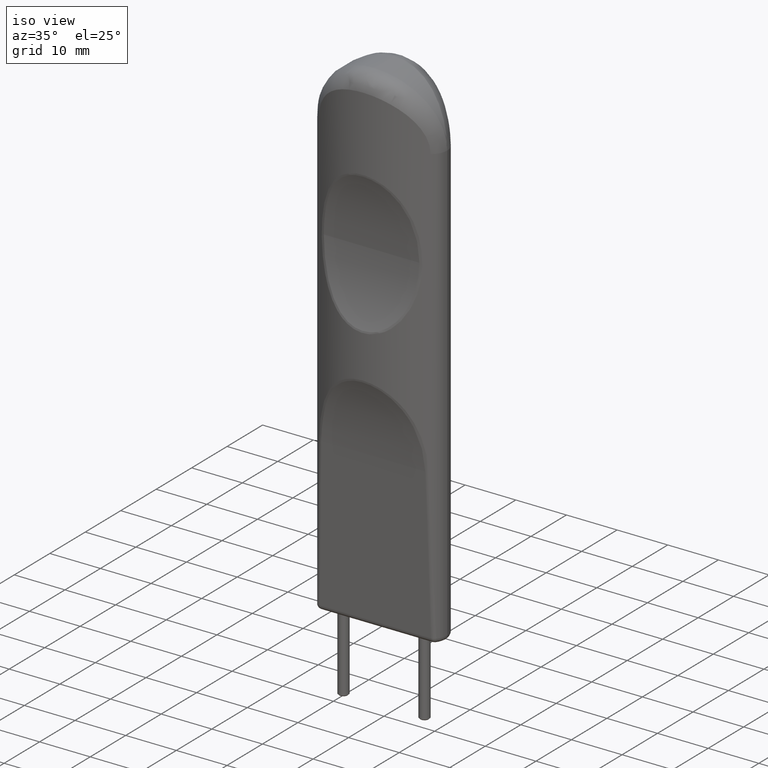
[diagram: clean part render]
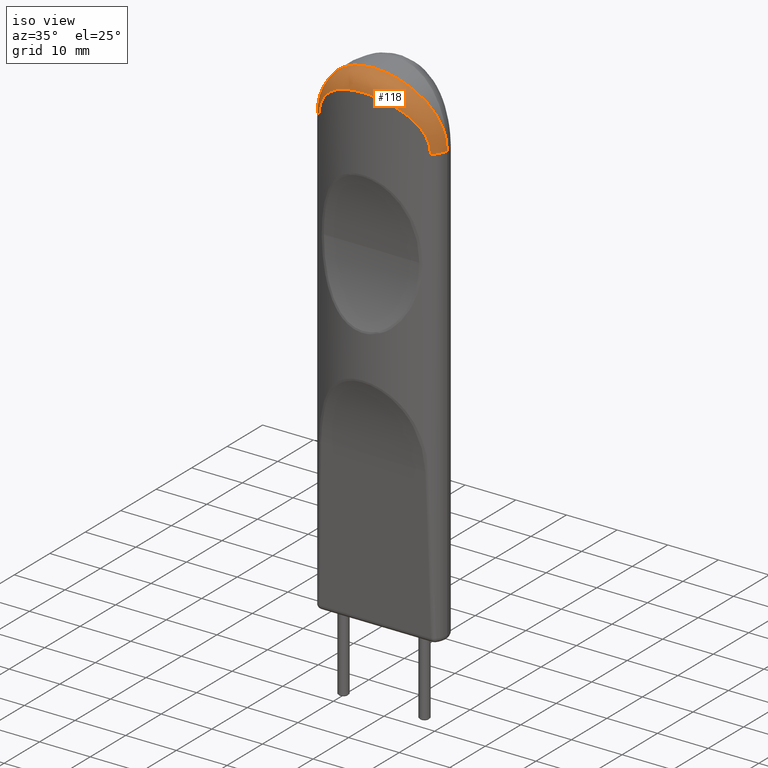
[diagram: same view with one face highlighted and labeled with its STEP entity id]
A machine part, iso view. The second image highlights one B-rep face of the part: STEP entity #118.
In plain terms, the highlighted face is a freeform B-spline surface patch.
Its self-contained STEP definition (entity closure, byte-faithful):
#118=ADVANCED_FACE('NONE',(#266),#267,.T.);
#266=FACE_OUTER_BOUND('',#911,.T.);
#267=(B_SPLINE_SURFACE(3,2,((#913,#914,#915),(#916,#917,#918),(#919,#920,#921),(#922,#923,#924),(#925,#926,#927),(#928,#929,#930),(#931,#932,#933),(#934,#935,#936),(#937,#938,#939),(#940,#941,#942),(#943,#944,#945),(#946,#947,#948),(#949,#950,#951),(#952,#953,#954),(#955,#956,#957),(#958,#959,#960),(#961,#962,#963),(#964,#965,#966),(#967,#968,#969),(#970,#971,#972),(#973,#974,#975),(#976,#977,#978),(#979,#980,#981),(#982,#983,#984),(#985,#986,#987),(#988,#989,#990),(#991,#992,#993),(#994,#995,#996),(#997,#998,#999),(#1000,#1001,#1002),(#1003,#1004,#1005),(#1006,#1007,#1008),(#1009,#1010,#1011),(#1012,#1013,#1014),(#1015,#1016,#1017),(#1018,#1019,#1020),(#1021,#1022,#1023),(#1024,#1025,#1026),(#1027,#1028,#1029),(#1030,#1031,#1032),(#1033,#1034,#1035),(#1036,#1037,#1038),(#1039,#1040,#1041),(#1042,#1043,#1044),(#1045,#1046,#1047),(#1048,#1049,#1050),(#1051,#1052,#1053),(#1054,#1055,#1056),(#1057,#1058,#1059),(#1060,#1061,#1062)),.UNSPECIFIED.,.F.,.F.,.F.)B_SPLINE_SURFACE_WITH_KNOTS((4,2,2,2,2,2,2,2,2,2,2,2,2,2,2,2,2,2,2,2,2,2,2,2,4),(3,3),(0.0,0.00185581353227993,0.0027837202984199,0.00371162706455987,0.0055674405968398,0.00742325412911973,0.0083511608952597,0.00927906766139967,0.0111348811936796,0.0120627879598196,0.0129906947259595,0.0148465082582395,0.0157744150243794,0.0167023217905194,0.0176302285566594,0.0185581353227993,0.0204139488550793,0.0213418556212192,0.0222697623873592,0.0231976691534992,0.0241255759196391,0.0259813894519191,0.026909296218059,0.027837202984199,0.0296930165164789),(0.0,1.0),.UNSPECIFIED.)RATIONAL_B_SPLINE_SURFACE(((1.0,0.881354477089505,1.0),(1.0,0.881350704842463,1.0),(1.0,0.879210961076711,1.0),(1.0,0.873111829568949,1.0),(1.0,0.870596192241215,1.0),(1.0,0.864636514222427,1.0),(1.0,0.861232134745143,1.0),(1.0,0.8499715736576,1.0),(1.0,0.841043785469822,1.0),(1.0,0.82108445504702,1.0),(1.0,0.810274152130972,1.0),(1.0,0.793692625480893,1.0),(1.0,0.788097253600619,1.0),(1.0,0.776910120393579,1.0),(1.0,0.771299581266794,1.0),(1.0,0.755057765443397,1.0),(1.0,0.744904365497337,1.0),(1.0,0.731727931150049,1.0),(1.0,0.727680122794906,1.0),(1.0,0.720479977009014,1.0),(1.0,0.717373261118113,1.0),(1.0,0.709842852193456,1.0),(1.0,0.70715177963089,1.0),(1.0,0.707085124523996,1.0),(1.0,0.707736348010405,1.0),(1.0,0.71031336503987,1.0),(1.0,0.71223237154337,1.0),(1.0,0.717208710696845,1.0),(1.0,0.72026596900322,1.0),(1.0,0.727388720255791,1.0),(1.0,0.731474240029771,1.0),(1.0,0.744725050866854,1.0),(1.0,0.754930593230877,1.0),(1.0,0.771213155948768,1.0),(1.0,0.776825137060823,1.0),(1.0,0.788013807653101,1.0),(1.0,0.793611776311477,1.0),(1.0,0.804674534809966,1.0),(1.0,0.810139712143007,1.0),(1.0,0.82081081476481,1.0),(1.0,0.82603700838565,1.0),(1.0,0.841000951242173,1.0),(1.0,0.849902344181361,1.0),(1.0,0.861119366720025,1.0),(1.0,0.864502309306336,1.0),(1.0,0.87045282875738,1.0),(1.0,0.873025812735064,1.0),(1.0,0.879205377223568,1.0),(1.0,0.881351061532082,1.0),(1.0,0.881354477089505,1.0)))BOUNDED_SURFACE()REPRESENTATION_ITEM('')GEOMETRIC_REPRESENTATION_ITEM()SURFACE());
#911=EDGE_LOOP('',(#2170,#2171,#2172,#2173,#2174));
#913=CARTESIAN_POINT('',(12.5,-4.31644065906311E-015,-12.5));
#914=CARTESIAN_POINT('',(12.5,-1.71538005574048,-12.5));
#915=CARTESIAN_POINT('',(11.0714285714286,-2.66496544373967,-12.5));
#916=CARTESIAN_POINT('',(12.5,-1.06070415647209E-009,-11.6547701359441));
#917=CARTESIAN_POINT('',(12.4999999982459,-1.71538005713984,-11.7318884724111));
#918=CARTESIAN_POINT('',(11.0714285695283,-2.66496544500277,-11.8711489811357));
#919=CARTESIAN_POINT('',(12.4151995764905,-0.0424844794774594,-10.8281563662102));
#920=CARTESIAN_POINT('',(12.4302795858096,-1.77175492873592,-10.9771605651081));
#921=CARTESIAN_POINT('',(10.9963196245077,-2.71554220449845,-11.2561483364682));
#922=CARTESIAN_POINT('',(12.1692509058883,-0.160671831186039,-9.61384463264355));
#923=CARTESIAN_POINT('',(12.2282397263254,-1.92873670906678,-9.86755203782174));
#924=CARTESIAN_POINT('',(10.7784793739787,-2.8562414335088,-10.3527004066829));
#925=CARTESIAN_POINT('',(12.0673080935623,-0.209128735203829,-9.21335388186159));
#926=CARTESIAN_POINT('',(12.1438914017042,-1.99359221154072,-9.49891680751394));
#927=CARTESIAN_POINT('',(10.6881871685345,-2.9139282233673,-10.0547352880568));
#928=CARTESIAN_POINT('',(11.8229447087229,-0.322459750503214,-8.42079103926907));
#929=CARTESIAN_POINT('',(11.9408800821344,-2.14604370507042,-8.76586950761681));
#930=CARTESIAN_POINT('',(10.4717510277752,-3.04884609947752,-9.46506853326438));
#931=CARTESIAN_POINT('',(11.6821311168874,-0.386564613740493,-8.03418233428872));
#932=CARTESIAN_POINT('',(11.8231278397492,-2.23290365436808,-8.40584056115698));
#933=CARTESIAN_POINT('',(10.3470304173021,-3.12516141207994,-9.1774316568082));
#934=CARTESIAN_POINT('',(11.2091556384817,-0.595407860839066,-6.90824810149791));
#935=CARTESIAN_POINT('',(11.4234126019701,-2.51921137438745,-7.34531849404839));
#936=CARTESIAN_POINT('',(9.92810928082301,-3.37378432648773,-8.33973658731966));
#937=CARTESIAN_POINT('',(10.8260093833539,-0.757053513655161,-6.19904126624005));
#938=CARTESIAN_POINT('',(11.0951633972035,-2.74422821262967,-6.66760404331657));
#939=CARTESIAN_POINT('',(9.58875116785304,-3.56621962562795,-7.81208670192746));
#940=CARTESIAN_POINT('',(9.92344069770985,-1.10441481350763,-4.85605567445389));
#941=CARTESIAN_POINT('',(10.307150508985,-3.23839294064196,-5.35727304509125));
#942=CARTESIAN_POINT('',(8.78933318966057,-3.97974498466422,-6.81290542194883));
#943=CARTESIAN_POINT('',(9.41383612047189,-1.2861418177226,-4.23764700089146));
#944=CARTESIAN_POINT('',(9.85132832154441,-3.50389871335829,-4.73809721061738));
#945=CARTESIAN_POINT('',(8.33796913495299,-4.19608665435325,-6.35280936858977));
#946=CARTESIAN_POINT('',(8.56854005459937,-1.55407138276584,-3.39015267806474));
#947=CARTESIAN_POINT('',(9.07886637849381,-3.90466560049013,-3.87025024319363));
#948=CARTESIAN_POINT('',(7.58927833423479,-4.51505042370327,-5.7222735925169));
#949=CARTESIAN_POINT('',(8.27284715955659,-1.64276868278481,-3.12065837077198));
#950=CARTESIAN_POINT('',(8.8026627442849,-4.04043602913307,-3.58793573150402));
#951=CARTESIAN_POINT('',(7.32737891273128,-4.62064244651644,-5.5217698276673));
#952=CARTESIAN_POINT('',(7.65222073565874,-1.81676968194947,-2.60780270435796));
#953=CARTESIAN_POINT('',(8.21326965687462,-4.31143064062291,-3.04153876419905));
#954=CARTESIAN_POINT('',(6.77768122303087,-4.82778649421798,-5.14020521222937));
#955=CARTESIAN_POINT('',(7.32597117364637,-1.90233994576625,-2.36376424112086));
#956=CARTESIAN_POINT('',(7.8982872704888,-4.44706725533905,-2.77699213546968));
#957=CARTESIAN_POINT('',(6.48871732504675,-4.92965585501693,-4.95864059548028));
#958=CARTESIAN_POINT('',(6.32152689740846,-2.14566844227276,-1.68608240867111));
#959=CARTESIAN_POINT('',(6.90385699079052,-4.84274414379034,-2.02361362999075));
#960=CARTESIAN_POINT('',(5.59906668092757,-5.21933263761996,-4.4544453118786));
#961=CARTESIAN_POINT('',(5.61268327555682,-2.29173194844491,-1.3012511414315));
#962=CARTESIAN_POINT('',(6.18366855982891,-5.08725406425707,-1.58327923119778));
#963=CARTESIAN_POINT('',(4.97123375839535,-5.39321776242645,-4.16813084874483));
#964=CARTESIAN_POINT('',(4.48647446674052,-2.47647456206023,-0.825772220547669));
#965=CARTESIAN_POINT('',(5.00330486679086,-5.40581572894936,-1.0231255759047));
#966=CARTESIAN_POINT('',(3.97373452766195,-5.61314944663755,-3.81437453232757));
#967=CARTESIAN_POINT('',(4.10051030996041,-2.53232599362809,-0.684378236175428));
#968=CARTESIAN_POINT('',(4.58994430696019,-5.50431565801789,-0.852763515560932));
#969=CARTESIAN_POINT('',(3.63188056032861,-5.67963924515762,-3.7091774072693));
#970=CARTESIAN_POINT('',(3.30575187608477,-2.6306276603913,-0.437864741198659));
#971=CARTESIAN_POINT('',(3.72511433293295,-5.68034856474748,-0.551198950722831));
#972=CARTESIAN_POINT('',(2.92795166159713,-5.79666503996383,-3.525771367897));
#973=CARTESIAN_POINT('',(2.90119889070772,-2.67246242063303,-0.334282214862692));
#974=CARTESIAN_POINT('',(3.27903269918541,-5.75632824468209,-0.422681188548715));
#975=CARTESIAN_POINT('',(2.56963330316672,-5.84646832533763,-3.44870596793834));
#976=CARTESIAN_POINT('',(1.68331492420184,-2.77320714388822,-0.086175940099728));
#977=CARTESIAN_POINT('',(1.91464316860513,-5.94206398892823,-0.110205493307569));
#978=CARTESIAN_POINT('',(1.49093607578472,-5.96640252001312,-3.26411489927319));
#979=CARTESIAN_POINT('',(0.858809075763418,-2.80833959172347,-0.00143697773054084));
#980=CARTESIAN_POINT('',(0.980452891961407,-6.00781965335191,-0.00184413982401522));
#981=CARTESIAN_POINT('',(0.760659467105521,-6.00822686208451,-3.20106911087103));
#982=CARTESIAN_POINT('',(-0.397640060614436,-2.80921625318065,0.000691582658869512));
#983=CARTESIAN_POINT('',(-0.454005581405283,-6.0094665373839,0.00088762358258066));
#984=CARTESIAN_POINT('',(-0.352195482258891,-6.00927050723675,-3.19948546278205));
#985=CARTESIAN_POINT('',(-0.821803487467523,-2.80066958287997,-0.0200232263054139));
#986=CARTESIAN_POINT('',(-0.937418273408291,-5.99342268005317,-0.0256782892682019));
#987=CARTESIAN_POINT('',(-0.727883088881577,-5.99909589981109,-3.21489728064632));
#988=CARTESIAN_POINT('',(-1.65477910811119,-2.76663301974319,-0.102948441370067));
#989=CARTESIAN_POINT('',(-1.88309094302569,-5.92983688281289,-0.131511061466216));
#990=CARTESIAN_POINT('',(-1.46566149577386,-5.95857618126723,-3.27659364010424));
#991=CARTESIAN_POINT('',(-2.0659739332484,-2.74122849006839,-0.164953168578548));
#992=CARTESIAN_POINT('',(-2.34645517946303,-5.88268217874887,-0.210136022860188));
#993=CARTESIAN_POINT('',(-1.82986262659399,-5.92833269403709,-3.32272515751114));
#994=CARTESIAN_POINT('',(-2.87817096796925,-2.67467398119406,-0.328814334447066));
#995=CARTESIAN_POINT('',(-3.25351672649433,-5.76036342394798,-0.415865783679877));
#996=CARTESIAN_POINT('',(-2.54923714305593,-5.84910113542134,-3.44463786473991));
#997=CARTESIAN_POINT('',(-3.27917233980777,-2.63352141029648,-0.430673103360809));
#998=CARTESIAN_POINT('',(-3.69591501228288,-5.68558315580701,-0.542311698066188));
#999=CARTESIAN_POINT('',(-2.90440978674758,-5.80010997998552,-3.52042078881517));
#1000=CARTESIAN_POINT('',(-4.07110028699482,-2.53633055688673,-0.674275268494989));
#1001=CARTESIAN_POINT('',(-4.55825522252064,-5.51141980224825,-0.840519329812632));
#1002=CARTESIAN_POINT('',(-3.60583168270614,-5.68440658271191,-3.70166079984554));
#1003=CARTESIAN_POINT('',(-4.46334436880621,-2.47999931014196,-0.816785590402289));
#1004=CARTESIAN_POINT('',(-4.97864255244315,-5.41200202000456,-1.01234980874946));
#1005=CARTESIAN_POINT('',(-3.95324786947342,-5.61734557533957,-3.80768847955061));
#1006=CARTESIAN_POINT('',(-5.60014109569037,-2.29430797348527,-1.29445729609214));
#1007=CARTESIAN_POINT('',(-6.17075685666746,-5.09162648577407,-1.57539786021325));
#1008=CARTESIAN_POINT('',(-4.96012497054992,-5.3962844588365,-4.16307622770994));
#1009=CARTESIAN_POINT('',(-6.31315294546856,-2.14753703512381,-1.68101870677671));
#1010=CARTESIAN_POINT('',(-6.89542367941452,-4.84583975627291,-2.01787836982568));
#1011=CARTESIAN_POINT('',(-5.59164975202007,-5.22155715296255,-4.45067791774436));
#1012=CARTESIAN_POINT('',(-7.32087747686129,-1.90365280939236,-2.36003860693822));
#1013=CARTESIAN_POINT('',(-7.89333741181955,-4.44916224775107,-2.77292653449067));
#1014=CARTESIAN_POINT('',(-6.48420576506033,-4.9312187878833,-4.95586872361079));
#1015=CARTESIAN_POINT('',(-7.64735618298458,-1.81807474759597,-2.60403804210694));
#1016=CARTESIAN_POINT('',(-8.20859838685569,-4.31348741833046,-3.03748063756576));
#1017=CARTESIAN_POINT('',(-6.77337261923827,-4.82934014379413,-5.13740430350893));
#1018=CARTESIAN_POINT('',(-8.2683655539508,-1.64408306081454,-3.11670363210566));
#1019=CARTESIAN_POINT('',(-8.79845358252937,-4.04245971616466,-3.5837691311999));
#1020=CARTESIAN_POINT('',(-7.32340949061878,-4.62220718226914,-5.51882750210525));
#1021=CARTESIAN_POINT('',(-8.56432032415299,-1.55536192905462,-3.38617394607405));
#1022=CARTESIAN_POINT('',(-9.07494397731243,-3.90663069267064,-3.86610341434181));
#1023=CARTESIAN_POINT('',(-7.58554085870172,-4.51658678833063,-5.71931341591056));
#1024=CARTESIAN_POINT('',(-9.12847465150279,-1.37663783207852,-3.95129492304299));
#1025=CARTESIAN_POINT('',(-9.59410121621047,-3.63742068344224,-4.44885441171117));
#1026=CARTESIAN_POINT('',(-8.08522040545055,-4.30382000525957,-6.13976342271252));
#1027=CARTESIAN_POINT('',(-9.39667211743741,-1.28662922465879,-4.24694446899973));
#1028=CARTESIAN_POINT('',(-9.83730852891652,-3.50395307471983,-4.7491209346743));
#1029=CARTESIAN_POINT('',(-8.32276673292681,-4.19666690210367,-6.35972668484383));
#1030=CARTESIAN_POINT('',(-9.90567052107076,-1.10759479316275,-4.86533798990491));
#1031=CARTESIAN_POINT('',(-10.2926988243049,-3.24233932648839,-5.36827872298245));
#1032=CARTESIAN_POINT('',(-8.77359388975186,-3.98353067325843,-6.81981146458122));
#1033=CARTESIAN_POINT('',(-10.147369119002,-1.01821519634581,-5.18943671583507));
#1034=CARTESIAN_POINT('',(-10.5062166235412,-3.11353191811692,-5.68846601922286));
#1035=CARTESIAN_POINT('',(-8.98766979121179,-3.87712639229649,-7.0609409166809));
#1036=CARTESIAN_POINT('',(-10.8241280094677,-0.757815042935258,-6.19587475450539));
#1037=CARTESIAN_POINT('',(-11.0935465750197,-2.74529328344666,-6.66456404873635));
#1038=CARTESIAN_POINT('',(-9.58708480819425,-3.56712620808658,-7.8097308171528));
#1039=CARTESIAN_POINT('',(-11.2061707712022,-0.596658222186654,-6.90293463246015));
#1040=CARTESIAN_POINT('',(-11.4208845130899,-2.52093246621287,-7.34029894968571));
#1041=CARTESIAN_POINT('',(-9.92546554113311,-3.37527285190636,-8.33578336639098));
#1042=CARTESIAN_POINT('',(-11.6774323027922,-0.388672528734882,-8.02211815316989));
#1043=CARTESIAN_POINT('',(-11.819195078088,-2.23576402139343,-8.39458951718284));
#1044=CARTESIAN_POINT('',(-10.3428686105818,-3.12767083468989,-9.16845590603808));
#1045=CARTESIAN_POINT('',(-11.8174024021231,-0.324991857583798,-8.40502184789783));
#1046=CARTESIAN_POINT('',(-11.9362590753776,-2.14946415044901,-8.75122598282072));
#1047=CARTESIAN_POINT('',(-10.4668421282774,-3.05186051262601,-9.45333625471238));
#1048=CARTESIAN_POINT('',(-12.0614675217911,-0.211874041108233,-9.19230490814566));
#1049=CARTESIAN_POINT('',(-12.1390567894196,-1.99726988021916,-9.47952396332972));
#1050=CARTESIAN_POINT('',(-10.6830140900465,-2.91719644472477,-10.039074851784));
#1051=CARTESIAN_POINT('',(-12.1657715375485,-0.162332612533014,-9.59870926830808));
#1052=CARTESIAN_POINT('',(-12.2253659228344,-1.93095529221399,-9.85364227193033));
#1053=CARTESIAN_POINT('',(-10.7753976476617,-2.8582185541646,-10.3414396956304));
#1054=CARTESIAN_POINT('',(-12.4149953962296,-0.0426044856736689,-10.8231489731931));
#1055=CARTESIAN_POINT('',(-12.4301041041006,-1.77191910337859,-10.9725559009981));
#1056=CARTESIAN_POINT('',(-10.9961387792801,-2.71568506900847,-11.2524228360373));
#1057=CARTESIAN_POINT('',(-12.5,-8.77705480435953E-010,-11.6538734095808));
#1058=CARTESIAN_POINT('',(-12.4999999985487,-1.71538005689836,-11.7310663009531));
#1059=CARTESIAN_POINT('',(-11.0714285698561,-2.66496544478488,-11.8704818167412));
#1060=CARTESIAN_POINT('',(-12.5,-2.69366146192746E-015,-12.5));
#1061=CARTESIAN_POINT('',(-12.5,-1.71538005574048,-12.5));
#1062=CARTESIAN_POINT('',(-11.0714285714286,-2.66496544373966,-12.5));
#2170=ORIENTED_EDGE('',*,*,#2445,.F.);
#2171=ORIENTED_EDGE('',*,*,#2478,.F.);
#2172=ORIENTED_EDGE('',*,*,#2440,.F.);
#2173=ORIENTED_EDGE('',*,*,#2476,.F.);
#2174=ORIENTED_EDGE('',*,*,#2469,.F.);
#2440=EDGE_CURVE('NONE',#2570,#2640,#2641,.T.);
#2445=EDGE_CURVE('NONE',#2646,#2648,#2649,.T.);
#2469=EDGE_CURVE('NONE',#2648,#2683,#2684,.T.);
#2476=EDGE_CURVE('NONE',#2683,#2570,#2693,.T.);
#2478=EDGE_CURVE('NONE',#2640,#2646,#2695,.T.);
#2570=VERTEX_POINT('NONE',#2890);
#2640=VERTEX_POINT('NONE',#3185);
#2641=B_SPLINE_CURVE_WITH_KNOTS('',3,(#3186,#3187,#3188,#3189,#3190,#3191,#3192,#3193,#3194,#3195,#3196,#3197,#3198,#3199,#3200,#3201,#3202,#3203,#3204,#3205,#3206,#3207,#3208,#3209,#3210,#3211),.UNSPECIFIED.,.F.,.F.,(4,2,2,2,2,2,2,2,2,2,2,2,4),(5.50161760662122E-018,0.00247325496763233,0.00370988245144849,0.00494650993526466,0.00741976490289698,0.00865639238671314,0.00989301987052928,0.0111296473543455,0.0123662748381616,0.0148395298057939,0.0160761572896101,0.0173127847734262,0.0197860397410586),.UNSPECIFIED.);
#2646=VERTEX_POINT('NONE',#3242);
#2648=VERTEX_POINT('NONE',#3245);
#2649=CIRCLE('',#3246,3.2);
#2683=VERTEX_POINT('NONE',#3526);
#2684=B_SPLINE_CURVE_WITH_KNOTS('',3,(#3527,#3528,#3529,#3530,#3531,#3532,#3533,#3534,#3535,#3536,#3537,#3538,#3539,#3540,#3541,#3542,#3543,#3544,#3545,#3546,#3547,#3548,#3549,#3550,#3551,#3552,#3553,#3554,#3555,#3556,#3557,#3558,#3559,#3560,#3561,#3562,#3563,#3564,#3565,#3566,#3567,#3568,#3569,#3570,#3571,#3572),.UNSPECIFIED.,.F.,.F.,(4,2,2,2,2,2,2,2,2,2,2,2,2,2,2,2,2,2,2,2,2,2,4),(3.49644694633735E-018,0.00204640767227597,0.00306961150841395,0.00409281534455194,0.0061392230168279,0.00818563068910386,0.00920883452524184,0.0102320383613798,0.0122784460336558,0.0143248537059317,0.0153480575420697,0.0163712613782077,0.0184176690504837,0.0194408728866216,0.0204640767227596,0.0225104843950356,0.0235336882311736,0.0245568920673115,0.0266032997395875,0.0286497074118635,0.0296729112480014,0.0306961150841394,0.0327425227564154),.UNSPECIFIED.);
#2693=CIRCLE('',#3653,3.2);
#2695=B_SPLINE_CURVE_WITH_KNOTS('',3,(#3655,#3656,#3657,#3658,#3659,#3660,#3661,#3662,#3663,#3664,#3665,#3666,#3667,#3668,#3669,#3670,#3671,#3672,#3673,#3674,#3675,#3676,#3677,#3678,#3679,#3680),.UNSPECIFIED.,.F.,.F.,(4,2,2,2,2,2,2,2,2,2,2,2,4),(0.0197860397410586,0.021020671858098,0.0222553039751374,0.0234899360921769,0.0247245682092163,0.0271938324432952,0.0284284645603346,0.0296630966773741,0.032132360911453,0.0333669930284924,0.0346016251455318,0.0370708893796107,0.0395401536136896),.UNSPECIFIED.);
#2890=CARTESIAN_POINT('',(-12.5,0.0,-12.5));
#3185=CARTESIAN_POINT('',(-3.55082222120991E-012,-2.80893142036678,-4.09622530904424E-016));
#3186=CARTESIAN_POINT('',(-12.5,0.0,-12.5));
#3187=CARTESIAN_POINT('',(-12.5,-5.88518491752288E-015,-11.6626659766315));
#3188=CARTESIAN_POINT('',(-12.4167438163012,-0.0417096311885057,-10.8418765127654));
#3189=CARTESIAN_POINT('',(-12.1738817411403,-0.158462396349906,-9.63376056872866));
#3190=CARTESIAN_POINT('',(-12.0731068863402,-0.206392177408659,-9.23492381346142));
#3191=CARTESIAN_POINT('',(-11.8312059215608,-0.318672884344765,-8.44497856546697));
#3192=CARTESIAN_POINT('',(-11.6904889753263,-0.382802876904685,-8.0559850578219));
#3193=CARTESIAN_POINT('',(-11.2179550595577,-0.591659452391733,-6.92553236300911));
#3194=CARTESIAN_POINT('',(-10.8339634217629,-0.7538578045937,-6.21219767213494));
#3195=CARTESIAN_POINT('',(-10.1545125216255,-1.01555071762408,-5.19923422970231));
#3196=CARTESIAN_POINT('',(-9.90995369320173,-1.10607076819686,-4.87066384275329));
#3197=CARTESIAN_POINT('',(-9.39542508554648,-1.28708521886404,-4.24530800916481));
#3198=CARTESIAN_POINT('',(-9.12441521976252,-1.37800348204707,-3.94680195889798));
#3199=CARTESIAN_POINT('',(-8.55499825765523,-1.55823364436026,-3.37727263125432));
#3200=CARTESIAN_POINT('',(-8.256591421158,-1.64755101379605,-3.10625081176909));
#3201=CARTESIAN_POINT('',(-7.63158787459571,-1.82231589327538,-2.59178662827387));
#3202=CARTESIAN_POINT('',(-7.30344751019806,-1.90813489316782,-2.34732990057878));
#3203=CARTESIAN_POINT('',(-6.28519590014621,-2.15375031482482,-1.66420121890477));
#3204=CARTESIAN_POINT('',(-5.57014420391242,-2.29983430826674,-1.28004576127746));
#3205=CARTESIAN_POINT('',(-4.44240970739743,-2.48309046160075,-0.80893649472073));
#3206=CARTESIAN_POINT('',(-4.05724265751737,-2.53820175420955,-0.669557358212105));
#3207=CARTESIAN_POINT('',(-3.2674394417513,-2.63478524339037,-0.427534196482478));
#3208=CARTESIAN_POINT('',(-2.86212680454134,-2.67618886365596,-0.325070823339704));
#3209=CARTESIAN_POINT('',(-1.64693804261609,-2.77515422122761,-0.081454340718605));
#3210=CARTESIAN_POINT('',(-0.827952517134398,-2.80893142036668,-2.347881215017E-013));
#3211=CARTESIAN_POINT('',(-3.55082222120991E-012,-2.80893142036678,-4.09622530904424E-016));
#3242=CARTESIAN_POINT('',(12.5,0.0,-12.5));
#3245=CARTESIAN_POINT('',(11.0714285714286,-2.66496544373966,-12.5));
#3246=AXIS2_PLACEMENT_3D('',#4131,#4132,#4133);
#3526=CARTESIAN_POINT('',(-11.0714285714286,-2.66496544373966,-12.5));
#3527=CARTESIAN_POINT('',(11.0714285714286,-2.66496544373966,-12.5));
#3528=CARTESIAN_POINT('',(11.0714285714286,-2.66496544373967,-11.8051826068772));
#3529=CARTESIAN_POINT('',(10.9800309586937,-2.72663318355155,-11.1317201775837));
#3530=CARTESIAN_POINT('',(10.7194187735874,-2.89397566610766,-10.1494912345771));
#3531=CARTESIAN_POINT('',(10.6108359074016,-2.96274668705124,-9.82524777048519));
#3532=CARTESIAN_POINT('',(10.3600066610064,-3.11717366597958,-9.20366468646456));
#3533=CARTESIAN_POINT('',(10.2173801899931,-3.20308190051848,-8.90407788713572));
#3534=CARTESIAN_POINT('',(9.74159628506634,-3.4799352994414,-8.03500851067933));
#3535=CARTESIAN_POINT('',(9.357273389845,-3.69138467995878,-7.49231851499856));
#3536=CARTESIAN_POINT('',(8.50330111213605,-4.11753679919988,-6.51343234098071));
#3537=CARTESIAN_POINT('',(8.03086657843206,-4.33422419090656,-6.07099898398116));
#3538=CARTESIAN_POINT('',(7.25542021318323,-4.6485846041515,-5.46908089958675));
#3539=CARTESIAN_POINT('',(6.98482979757677,-4.75189359898118,-5.27844488193033));
#3540=CARTESIAN_POINT('',(6.43075075898877,-4.94915114469552,-4.92399913264221));
#3541=CARTESIAN_POINT('',(6.14624004891271,-5.04355623608555,-4.75929343145252));
#3542=CARTESIAN_POINT('',(5.27045441310733,-5.31165518504565,-4.30097871095059));
#3543=CARTESIAN_POINT('',(4.65712351444689,-5.47028779897741,-4.04280808027428));
#3544=CARTESIAN_POINT('',(3.36753930047214,-5.73436856593794,-3.62160027997032));
#3545=CARTESIAN_POINT('',(2.70994053444678,-5.83589476737445,-3.46478411684757));
#3546=CARTESIAN_POINT('',(1.70646001753712,-5.93883502084873,-3.3066865269553));
#3547=CARTESIAN_POINT('',(1.36900445886369,-5.96493462604659,-3.26690217172474));
#3548=CARTESIAN_POINT('',(0.688035299807705,-6.0000005408443,-3.21353208575617));
#3549=CARTESIAN_POINT('',(0.343193365098505,-6.00896186324154,-3.19995380539221));
#3550=CARTESIAN_POINT('',(-0.691695328191619,-6.00887029977382,-3.20009274557156));
#3551=CARTESIAN_POINT('',(-1.37146809206934,-5.97321979661529,-3.25387697912059));
#3552=CARTESIAN_POINT('',(-2.37658816321067,-5.87008099628209,-3.41228063903126));
#3553=CARTESIAN_POINT('',(-2.70919185118998,-5.82740394972493,-3.47812270105786));
#3554=CARTESIAN_POINT('',(-3.36948633458233,-5.72588188752931,-3.63646849119753));
#3555=CARTESIAN_POINT('',(-3.69845107295811,-5.66671546404378,-3.72948810798035));
#3556=CARTESIAN_POINT('',(-4.65982225966382,-5.46950982636409,-4.04408673663836));
#3557=CARTESIAN_POINT('',(-5.27178957756087,-5.31130625700731,-4.30154766773417));
#3558=CARTESIAN_POINT('',(-6.14826061550348,-5.04290765563912,-4.76041600966703));
#3559=CARTESIAN_POINT('',(-6.43346074346573,-4.94824908364784,-4.92557462447238));
#3560=CARTESIAN_POINT('',(-6.98971281832406,-4.75009161406185,-5.28172882704073));
#3561=CARTESIAN_POINT('',(-7.25892251984904,-4.64720203811576,-5.47168588217278));
#3562=CARTESIAN_POINT('',(-8.03080550725063,-4.33417395581984,-6.07118028434574));
#3563=CARTESIAN_POINT('',(-8.50223346382707,-4.11803509615446,-6.51238998289459));
#3564=CARTESIAN_POINT('',(-9.35602930906084,-3.69203989658901,-7.49071148896335));
#3565=CARTESIAN_POINT('',(-9.74076924807053,-3.48038933672831,-8.03386306462608));
#3566=CARTESIAN_POINT('',(-10.2161335483038,-3.20382083961166,-8.90161910806641));
#3567=CARTESIAN_POINT('',(-10.3586474693313,-3.1179959106947,-9.2007082068486));
#3568=CARTESIAN_POINT('',(-10.6093414524098,-2.96368117004645,-9.82113725586682));
#3569=CARTESIAN_POINT('',(-10.7181351517869,-2.89479336239885,-10.1452258024753));
#3570=CARTESIAN_POINT('',(-10.9799349847121,-2.72670777850853,-11.1302222605375));
#3571=CARTESIAN_POINT('',(-11.0714285714286,-2.66496544373967,-11.8048802079857));
#3572=CARTESIAN_POINT('',(-11.0714285714286,-2.66496544373966,-12.5));
#3653=AXIS2_PLACEMENT_3D('',#4160,#4161,#4162);
#3655=CARTESIAN_POINT('',(-3.55082222120991E-012,-2.80893142036678,-4.09622530904424E-016));
#3656=CARTESIAN_POINT('',(0.413308284993841,-2.80893142036683,1.17672075787093E-013));
#3657=CARTESIAN_POINT('',(0.831400849590791,-2.80036901171727,-0.0207539788876427));
#3658=CARTESIAN_POINT('',(1.65867163741398,-2.76638086905301,-0.103564341820375));
#3659=CARTESIAN_POINT('',(2.06681969176899,-2.74112687122532,-0.165205603277632));
#3660=CARTESIAN_POINT('',(2.87255766366623,-2.67516608020174,-0.327600527561954));
#3661=CARTESIAN_POINT('',(3.2701465541511,-2.63445653892948,-0.428357496196248));
#3662=CARTESIAN_POINT('',(4.05488388556027,-2.53848785975932,-0.668840804896114));
#3663=CARTESIAN_POINT('',(4.44320507518781,-2.48303228999298,-0.809063881967086));
#3664=CARTESIAN_POINT('',(5.58452597557486,-2.2973536265097,-1.28646780659483));
#3665=CARTESIAN_POINT('',(6.29929968903059,-2.15053869935606,-1.6729679726913));
#3666=CARTESIAN_POINT('',(7.30755575989421,-1.90704714086536,-2.35043948788006));
#3667=CARTESIAN_POINT('',(7.6329047177364,-1.821990068344,-2.59268706779979));
#3668=CARTESIAN_POINT('',(8.26202011739792,-1.6459901790354,-3.11090486008922));
#3669=CARTESIAN_POINT('',(8.56254797110862,-1.55593539860486,-3.38433426350523));
#3670=CARTESIAN_POINT('',(9.41708608708865,-1.28518168698358,-4.2405298029156));
#3671=CARTESIAN_POINT('',(9.92762882017001,-1.10290313937119,-4.86130424188412));
#3672=CARTESIAN_POINT('',(10.6053805042701,-0.841913557836247,-5.87125380794533));
#3673=CARTESIAN_POINT('',(10.8172502696627,-0.756679562549936,-6.22285945184944));
#3674=CARTESIAN_POINT('',(11.2023977657068,-0.596653667017583,-6.93927332476757));
#3675=CARTESIAN_POINT('',(11.3767026943026,-0.521494418943382,-7.30530026149843));
#3676=CARTESIAN_POINT('',(11.8456289622034,-0.314231576413588,-8.42714439725988));
#3677=CARTESIAN_POINT('',(12.0869011775545,-0.200248231481828,-9.20646392589976));
#3678=CARTESIAN_POINT('',(12.4165145045715,-0.0418482586161758,-10.8354497589036));
#3679=CARTESIAN_POINT('',(12.5,-3.73202716560245E-015,-11.6637734110109));
#3680=CARTESIAN_POINT('',(12.5,0.0,-12.5));
#4131=CARTESIAN_POINT('',(9.3,0.0,-12.5));
#4132=DIRECTION('',(0.0,0.0,-1.0));
#4133=DIRECTION('',(1.0,0.0,0.0));
#4160=CARTESIAN_POINT('',(-9.3,0.0,-12.5));
#4161=DIRECTION('',(0.0,0.0,-1.0));
#4162=DIRECTION('',(1.0,1.77635683940025E-015,0.0));